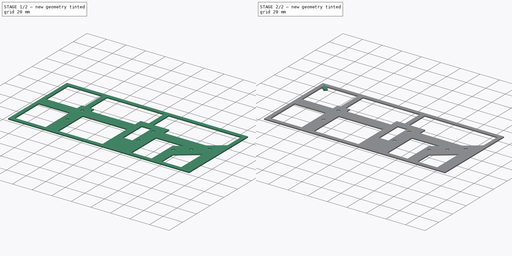
[diagram: build sequence overview — one tinted view per stage of 2, left to right]
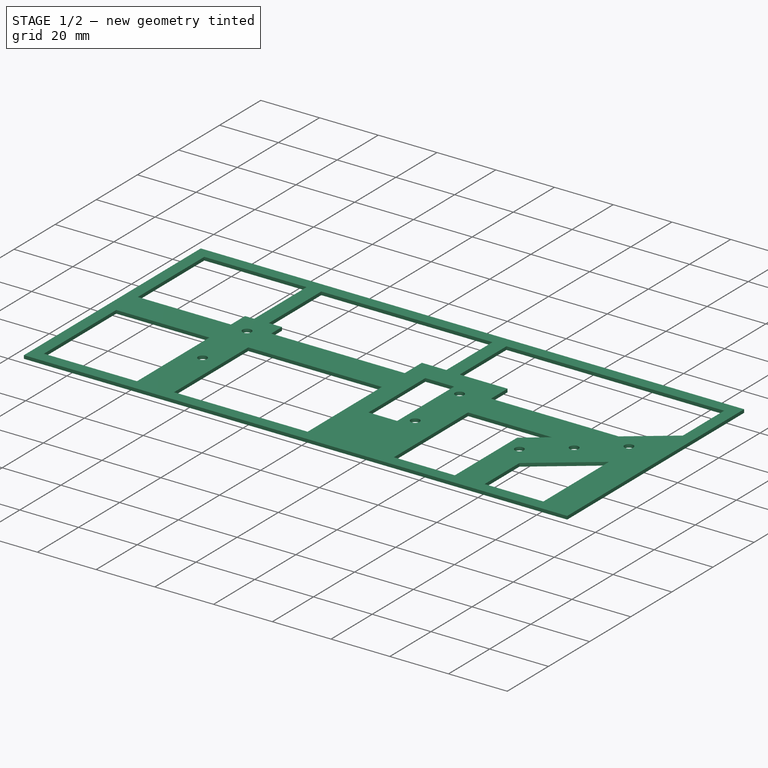
[diagram: stage 1 of 2 — iso view after this stage's code; geometry added in this stage tinted green]
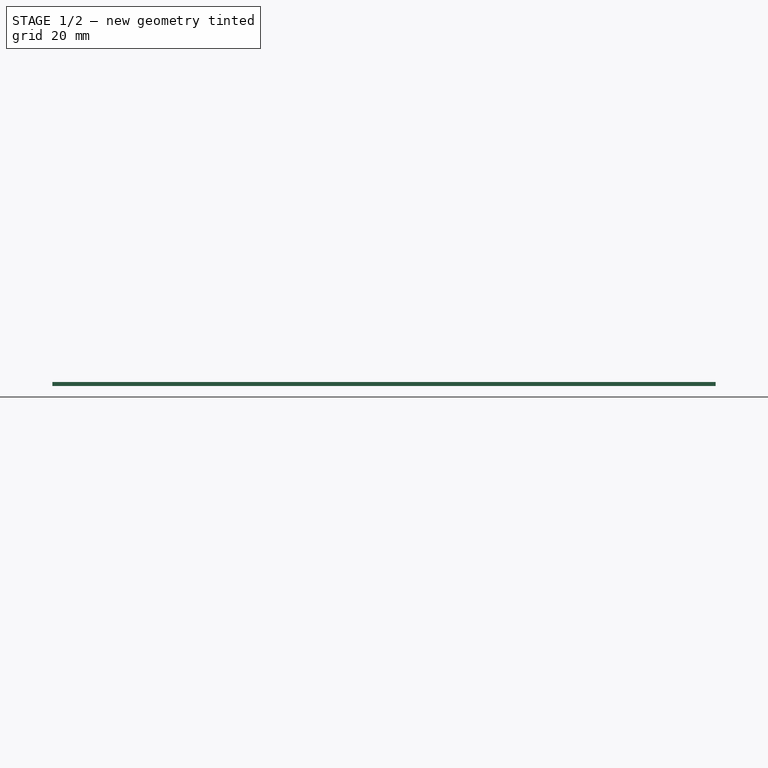
[diagram: stage 1 of 2 — front view after this stage's code; geometry added in this stage tinted green]
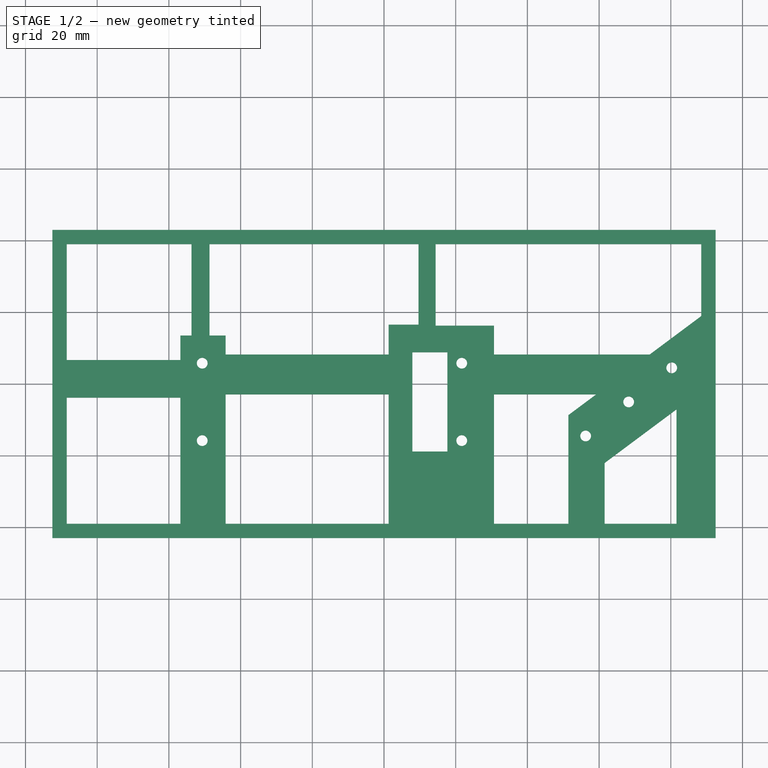
[diagram: stage 1 of 2 — top view after this stage's code; geometry added in this stage tinted green]
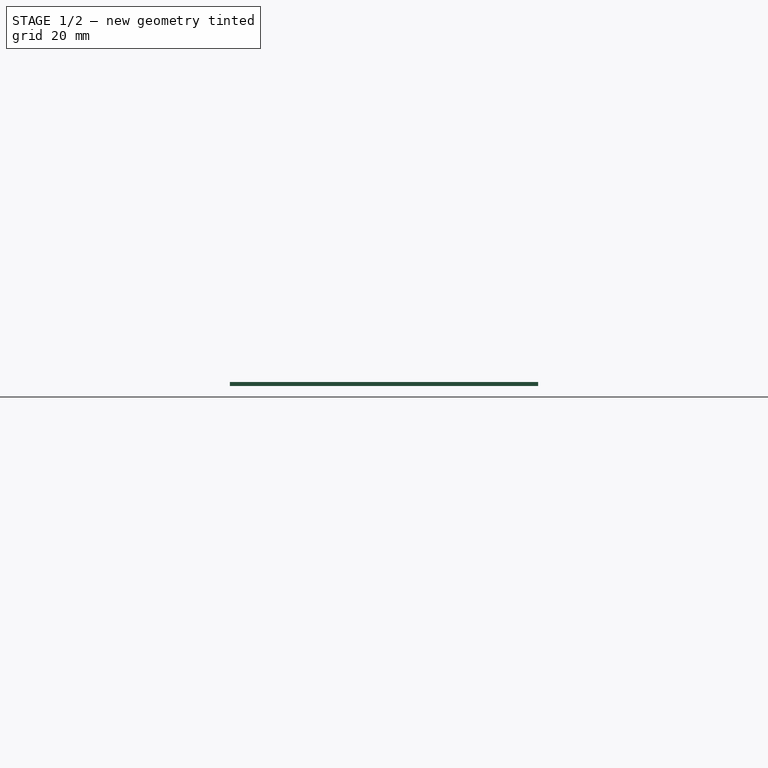
[diagram: stage 1 of 2 — right view after this stage's code; geometry added in this stage tinted green]
FCSTD DOCUMENT  (FreeCAD 0.20R29410 (Git))
Label: tools-case-top-panel
License: All rights reserved
LicenseURL: http://en.wikipedia.org/wiki/All_rights_reserved
objects: Sketcher::SketchObject×2, PartDesign::Pad×2, Part::FeaturePython×1, PartDesign::FeatureBase×1, PartDesign::Body×1
note: 9 computed .brp shape members not serialized (recipe doc carries the construction recipe); baked Part::Feature solids carry a one-line shape summary decoded from their .brp

FEATURE [Part::FeaturePython] b_case_top_panel_001_  label="REF_skBase"  # a2plus imported part (geometry in sourceFile) (typed FeaturePython)
  Placement = pos=(0,0,0) rot=(0.57735,0.57735,0.57735;2.0944rad)
  a2p_Version = V0.1
  fixedPosition = true
  objectType = a2pSketch
  sourceFile = .\case-top-panel.FCStd
  sourcePart = skBase
  subassemblyImport = false
  timeLastImport = 1.68112e+09
  updateColors = true
FEATURE [PartDesign::FeatureBase] BaseFeature  label="bfBase"
  BaseFeature = -> b_case_top_panel_001_
FEATURE [Sketcher::SketchObject] Sketch  label="skBase"
  ExternalGeometry = -> [BaseFeature]
  FullyConstrained = false
  MapMode = 5
  Support = -> [XY_Plane]
  sketch-geometry (64):
    g0: Circle CenterX=56.2497 CenterY=-14.5 CenterZ=0 NormalX=0 NormalY=0 NormalZ=1 AngleXU=0 Radius=1.5
    g1: Circle CenterX=68.2497 CenterY=-5 CenterZ=0 NormalX=0 NormalY=0 NormalZ=1 AngleXU=0 Radius=1.5
    g2: Circle CenterX=21.6847 CenterY=5.795 CenterZ=0 NormalX=0 NormalY=0 NormalZ=1 AngleXU=0 Radius=1.5
    g3: Circle CenterX=21.6847 CenterY=-15.795 CenterZ=0 NormalX=0 NormalY=0 NormalZ=1 AngleXU=0 Radius=1.5
    g4: Circle CenterX=-50.7053 CenterY=5.795 CenterZ=0 NormalX=0 NormalY=0 NormalZ=1 AngleXU=0 Radius=1.5
    g5: Circle CenterX=-50.7053 CenterY=-15.795 CenterZ=0 NormalX=0 NormalY=0 NormalZ=1 AngleXU=0 Radius=1.5
    g6: Circle CenterX=80.2497 CenterY=4.5 CenterZ=0 NormalX=0 NormalY=0 NormalZ=1 AngleXU=0 Radius=1.5
    g7: LineSegment StartX=-92.5 StartY=43 StartZ=0 EndX=92.5 EndY=43 EndZ=0
    g8: LineSegment StartX=92.5 StartY=43 StartZ=0 EndX=92.5 EndY=-43 EndZ=0
    g9: LineSegment StartX=92.5 StartY=-43 StartZ=0 EndX=-92.5 EndY=-43 EndZ=0
    g10: LineSegment StartX=-92.5 StartY=-43 StartZ=0 EndX=-92.5 EndY=43 EndZ=0
    g11: LineSegment StartX=7.9047 StartY=8.84 StartZ=0 EndX=17.6847 EndY=8.84 EndZ=0
    g12: LineSegment StartX=17.6847 StartY=8.84 StartZ=0 EndX=17.6847 EndY=-18.84 EndZ=0
    g13: LineSegment StartX=17.6847 StartY=-18.84 StartZ=0 EndX=7.9047 EndY=-18.84 EndZ=0
    g14: LineSegment StartX=7.9047 StartY=-18.84 StartZ=0 EndX=7.9047 EndY=8.84 EndZ=0
    g15: LineSegment StartX=88.5 StartY=39 StartZ=0 EndX=-88.5 EndY=39 EndZ=0
    g16: LineSegment StartX=-88.5 StartY=39 StartZ=0 EndX=-88.5 EndY=-39 EndZ=0
    g17: LineSegment StartX=-88.5 StartY=-39 StartZ=0 EndX=88.5 EndY=-39 EndZ=0
    g18: LineSegment StartX=88.5 StartY=-39 StartZ=0 EndX=88.5 EndY=39 EndZ=0
    g19: Circle CenterX=-88.5 CenterY=39 CenterZ=0 NormalX=0 NormalY=0 NormalZ=1 AngleXU=0 Radius=4
    g20: Circle CenterX=-88.5 CenterY=-39 CenterZ=0 NormalX=0 NormalY=0 NormalZ=1 AngleXU=0 Radius=4
    g21: Circle CenterX=88.5 CenterY=-39 CenterZ=0 NormalX=0 NormalY=0 NormalZ=1 AngleXU=0 Radius=4
    g22: Circle CenterX=88.5 CenterY=39 CenterZ=0 NormalX=0 NormalY=0 NormalZ=1 AngleXU=0 Radius=4
    g23: LineSegment StartX=61.5516 StartY=-39 StartZ=0 EndX=61.5516 EndY=-22.0325 EndZ=0
    g24: LineSegment StartX=61.5516 StartY=-22.0325 StartZ=0 EndX=81.5767 EndY=-7.09997 EndZ=0
    g25: LineSegment StartX=81.5767 StartY=-7.09997 StartZ=0 EndX=81.5767 EndY=-39 EndZ=0
    g26: LineSegment StartX=81.5767 StartY=-39 StartZ=0 EndX=61.5516 EndY=-39 EndZ=0
    g27: LineSegment StartX=51.4415 StartY=-8.67896 StartZ=0 EndX=51.4415 EndY=-39 EndZ=0
    g28: LineSegment StartX=51.4415 StartY=-39 StartZ=0 EndX=30.6762 EndY=-39 EndZ=0
    g29: LineSegment StartX=88.5 StartY=18.9553 StartZ=0 EndX=88.5 EndY=39 EndZ=0
    g30: LineSegment StartX=1.30061 StartY=-39 StartZ=0 EndX=-44.1832 EndY=-39 EndZ=0
    g31: LineSegment StartX=-56.7998 StartY=-39 StartZ=0 EndX=-88.5 EndY=-39 EndZ=0
    g32: LineSegment StartX=30.6762 StartY=16.2613 StartZ=0 EndX=14.3943 EndY=16.2613 EndZ=0
    g33: LineSegment StartX=14.3943 StartY=16.2613 StartZ=0 EndX=14.3943 EndY=39 EndZ=0
    g34: LineSegment StartX=1.30061 StartY=16.543 StartZ=0 EndX=9.64051 EndY=16.543 EndZ=0
    g35: LineSegment StartX=9.64051 StartY=16.543 StartZ=0 EndX=9.64051 EndY=39 EndZ=0
    g36: LineSegment StartX=9.64051 StartY=39 StartZ=0 EndX=-48.6629 EndY=39 EndZ=0
    g37: LineSegment StartX=-48.6629 StartY=39 StartZ=0 EndX=-48.6629 EndY=13.5048 EndZ=0
    g38: LineSegment StartX=-44.1832 StartY=13.5048 StartZ=0 EndX=-48.6629 EndY=13.5048 EndZ=0
    g39: LineSegment StartX=-56.7998 StartY=13.5048 StartZ=0 EndX=-53.6759 EndY=13.5048 EndZ=0
    g40: LineSegment StartX=-53.6759 StartY=13.5048 StartZ=0 EndX=-53.6759 EndY=39 EndZ=0
    g41: LineSegment StartX=-53.6759 StartY=39 StartZ=0 EndX=-88.5 EndY=39 EndZ=0
    g42: LineSegment StartX=14.3943 StartY=39 StartZ=0 EndX=88.5 EndY=39 EndZ=0
    g43: LineSegment StartX=88.5 StartY=18.9553 StartZ=0 EndX=74.1247 EndY=8.23579 EndZ=0
    g44: LineSegment StartX=74.1247 StartY=8.23579 StartZ=0 EndX=30.6762 EndY=8.23579 EndZ=0
    g45: LineSegment StartX=30.6762 StartY=8.23579 StartZ=0 EndX=30.6762 EndY=16.2613 EndZ=0
    g46: LineSegment StartX=51.4415 StartY=-8.67896 StartZ=0 EndX=59.1785 EndY=-2.90954 EndZ=0
    g47: LineSegment StartX=59.1785 StartY=-2.90954 StartZ=0 EndX=30.6762 EndY=-2.90954 EndZ=0
    g48: LineSegment StartX=30.6762 StartY=-2.90954 StartZ=0 EndX=30.6762 EndY=-39 EndZ=0
    g49: LineSegment StartX=59.1785 StartY=-2.90954 StartZ=0 EndX=74.1247 EndY=8.23579 EndZ=0
    g50: LineSegment StartX=1.30061 StartY=16.543 StartZ=0 EndX=1.30061 EndY=8.23579 EndZ=0
    g51: LineSegment StartX=1.30061 StartY=8.23579 StartZ=0 EndX=-44.1832 EndY=8.23579 EndZ=0
    g52: LineSegment StartX=-44.1832 StartY=8.23579 StartZ=0 EndX=-44.1832 EndY=13.5048 EndZ=0
    g53: LineSegment StartX=1.30061 StartY=-39 StartZ=0 EndX=1.30061 EndY=-2.90954 EndZ=0
    g54: LineSegment StartX=1.30061 StartY=-2.90954 StartZ=0 EndX=-44.1832 EndY=-2.90954 EndZ=0
    g55: LineSegment StartX=-44.1832 StartY=-2.90954 StartZ=0 EndX=-44.1832 EndY=-39 EndZ=0
    g56: LineSegment StartX=30.6762 StartY=8.23579 StartZ=0 EndX=1.30061 EndY=8.23579 EndZ=0
    g57: LineSegment StartX=30.6762 StartY=-2.90954 StartZ=0 EndX=1.30061 EndY=-2.90954 EndZ=0
    g58: LineSegment StartX=-88.5 StartY=39 StartZ=0 EndX=-88.5 EndY=6.68029 EndZ=0
    g59: LineSegment StartX=-88.5 StartY=6.68029 StartZ=0 EndX=-56.7998 EndY=6.68029 EndZ=0
    g60: LineSegment StartX=-56.7998 StartY=6.68029 StartZ=0 EndX=-56.7998 EndY=13.5048 EndZ=0
    g61: LineSegment StartX=-88.5 StartY=-39 StartZ=0 EndX=-88.5 EndY=-3.81903 EndZ=0
    g62: LineSegment StartX=-88.5 StartY=-3.81903 StartZ=0 EndX=-56.7998 EndY=-3.81903 EndZ=0
    g63: LineSegment StartX=-56.7998 StartY=-3.81903 StartZ=0 EndX=-56.7998 EndY=-39 EndZ=0
  constraints (146):
    c: Coincident(g0,g-11)
    c: Coincident(g1,g-13)
    c: Coincident(g2,g-9)
    c: Coincident(g3,g-10)
    c: Coincident(g4,g-5)
    c: Coincident(g5,g-6)
    c: Coincident(g6,g-12)
    c: Coincident(g7,g8)
    c: Coincident(g8,g9)
    c: Coincident(g9,g10)
    c: Coincident(g10,g7)
    c: Horizontal(g7)
    c: Horizontal(g9)
    c: Vertical(g8)
    c: Vertical(g10)
    c: Coincident(g7,g-4)
    c: Coincident(g8,g-3)
    c: Coincident(g11,g12)
    c: Coincident(g12,g13)
    c: Coincident(g13,g14)
    c: Coincident(g14,g11)
    c: Horizontal(g11)
    c: Horizontal(g13)
    c: Vertical(g12)
    c: Vertical(g14)
    c: Coincident(g11,g-8)
    c: Coincident(g12,g-7)
    c: Equal(g0,g1)
    c: Equal(g0,g6)
    c: Equal(g0, g2-g5) x4
    c: Diameter(g0) = 3
    c: Coincident(g15,g16)
    c: Coincident(g16,g17)
    c: Coincident(g17,g18)
    c: Coincident(g18,g15)
    c: Horizontal(g15)
    c: Horizontal(g17)
    c: Vertical(g16)
    c: Vertical(g18)
    c: Coincident(g19,g15)
    c: Coincident(g20,g16)
    c: Coincident(g21,g17)
    c: Coincident(g22,g15)
    c: Tangent(g22,g8)
    c: Tangent(g22,g7)
    c: Tangent(g19,g7)
    c: Tangent(g19,g10)
    c: Tangent(g20,g10)
    c: Tangent(g20,g9)
    c: Tangent(g21,g8)
    c: Radius(g21) = 4
    c: PointOnObject(g23,g17)
    c: Vertical(g23)
    c: Coincident(g23,g24)
    c: Coincident(g24,g25)
    c: PointOnObject(g25,g17)
    c: Vertical(g25)
    c: Coincident(g25,g26)
    c: Coincident(g26,g23)
    c: PointOnObject(g27,g17)
    c: Coincident(g27,g28)
    c: PointOnObject(g28,g17)
    c: Vertical(g27)
    c: PointOnObject(g29,g15)
    c: Vertical(g29)
    c: PointOnObject(g29,g18)
    c: PointOnObject(g30,g17)
    c: PointOnObject(g30,g17)
    c: PointOnObject(g31,g17)
    c: Coincident(g31,g16)
    c: Horizontal(g32)
    c: Coincident(g32,g33)
    c: Vertical(g33)
    c: Horizontal(g34)
    c: Coincident(g34,g35)
    c: Vertical(g35)
    c: Coincident(g35,g36)
    c: PointOnObject(g36,g15)
    c: Horizontal(g36)
    c: Coincident(g36,g37)
    c: Vertical(g37)
    c: Coincident(g38,g37)
    c: Horizontal(g38)
    c: Horizontal(g39)
    c: Coincident(g39,g40)
    c: Vertical(g40)
    c: Coincident(g40,g41)
    c: Horizontal(g41)
    c: Horizontal(g37,g39)
    c: Coincident(g42,g33)
    c: Coincident(g42,g29)
    c: Horizontal(g42)
    c: Coincident(g43,g44)
    c: Horizontal(g44)
    c: Coincident(g44,g45)
    c: Coincident(g45,g32)
    c: Vertical(g45)
    c: Parallel(g24,g43)
    c: Coincident(g27,g46)
    c: Coincident(g46,g47)
    c: Horizontal(g47)
    c: Coincident(g47,g48)
    c: Coincident(g48,g28)
    c: Vertical(g48)
    c: Parallel(g46,g24)
    c: Coincident(g49,g46)
    c: Coincident(g49,g43)
    c: Parallel(g49,g24)
    c: Vertical(g47,g44)
    c: Coincident(g34,g50)
    c: Vertical(g50)
    c: Coincident(g50,g51)
    c: Horizontal(g51)
    c: Coincident(g51,g52)
    c: Coincident(g52,g38)
    c: Vertical(g52)
    c: Coincident(g30,g53)
    c: Vertical(g53)
    c: Coincident(g53,g54)
    c: Horizontal(g54)
    c: Coincident(g54,g55)
    c: Coincident(g55,g30)
    c: Vertical(g55)
    c: Coincident(g56,g44)
    c: Coincident(g56,g50)
    c: Horizontal(g56)
    c: Coincident(g57,g47)
    c: Coincident(g57,g53)
    c: Horizontal(g57)
    c: Vertical(g54,g51)
    c: Coincident(g41,g58)
    c: PointOnObject(g58,g16)
    c: Vertical(g58)
    c: Coincident(g58,g59)
    c: Horizontal(g59)
    c: Coincident(g59,g60)
    c: Coincident(g60,g39)
    c: Vertical(g60)
    c: Coincident(g31,g61)
    c: PointOnObject(g61,g16)
    c: Coincident(g61,g62)
    c: Horizontal(g62)
    c: Coincident(g62,g63)
    c: Coincident(g63,g31)
    c: Vertical(g63)
    c: Coincident(g29,g43)
FEATURE [PartDesign::Pad] Pad  label="pdBase"
  BaseFeature = -> BaseFeature
  Direction = (0,0,1)
  Length = 1.12
  Length2 = 10
  Profile = -> Sketch
  ReferenceAxis = -> Sketch [N_Axis]
  Type = 0
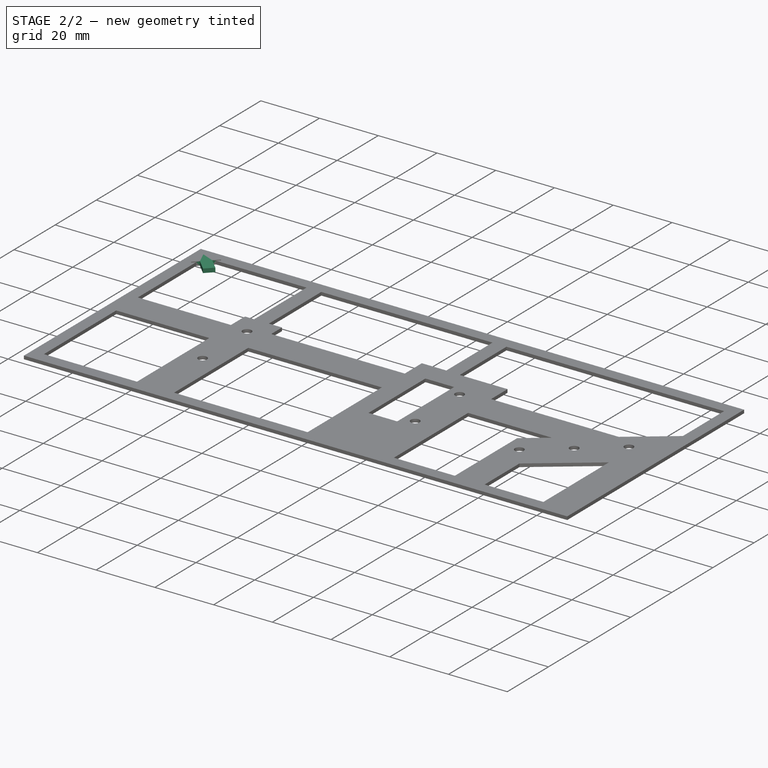
[diagram: stage 2 of 2 — iso view after this stage's code; geometry added in this stage tinted green]
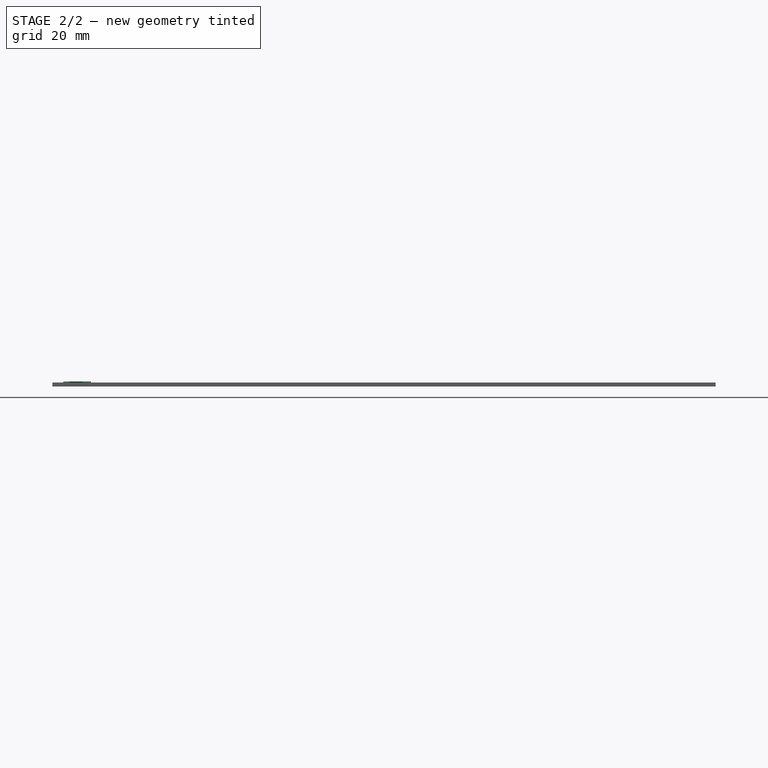
[diagram: stage 2 of 2 — front view after this stage's code; geometry added in this stage tinted green]
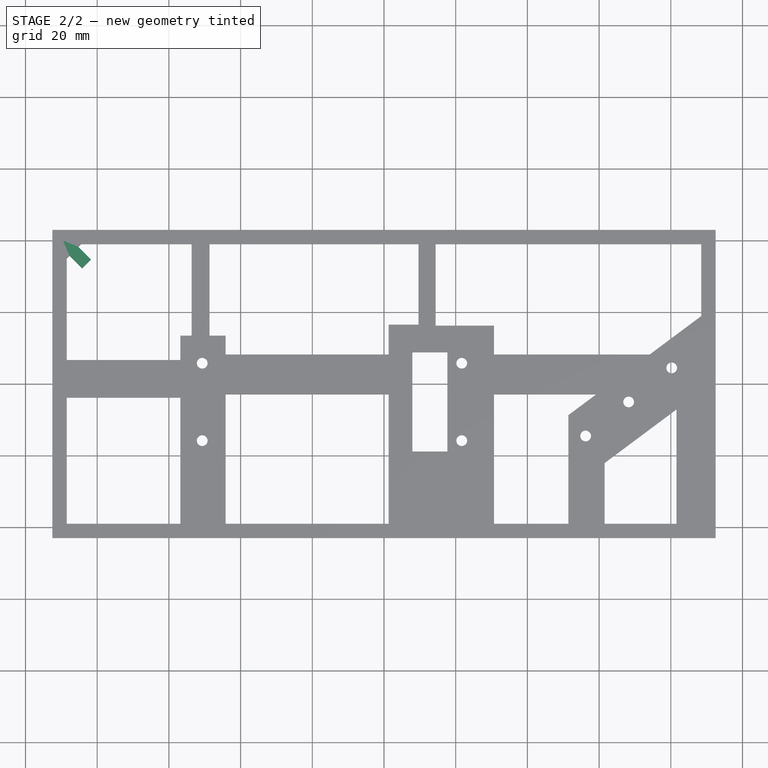
[diagram: stage 2 of 2 — top view after this stage's code; geometry added in this stage tinted green]
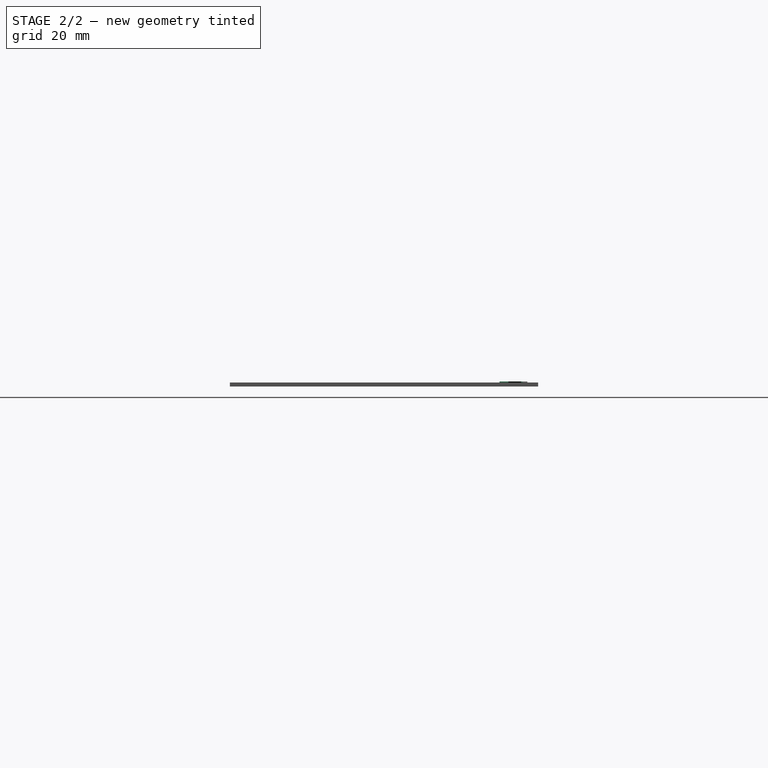
[diagram: stage 2 of 2 — right view after this stage's code; geometry added in this stage tinted green]
FEATURE [Sketcher::SketchObject] Sketch001  label="skArrow"
  ExternalGeometry = -> [BaseFeature]
  FullyConstrained = true
  MapMode = 5
  Support = -> [XY_Plane]
  sketch-geometry (9):
    g0: LineSegment StartX=-89.5 StartY=40 StartZ=0 EndX=-83.5 EndY=40 EndZ=0
    g1: LineSegment StartX=-83.5 StartY=40 StartZ=0 EndX=-85.2678 EndY=38.2322 EndZ=0
    g2: LineSegment StartX=-85.2678 StartY=38.2322 StartZ=0 EndX=-81.7322 EndY=34.6967 EndZ=0
    g3: LineSegment StartX=-81.7322 StartY=34.6967 StartZ=0 EndX=-84.1967 EndY=32.2322 EndZ=0
    g4: LineSegment StartX=-84.1967 StartY=32.2322 StartZ=0 EndX=-87.7322 EndY=35.7678 EndZ=0
    g5: LineSegment StartX=-87.7322 StartY=35.7678 StartZ=0 EndX=-89.5 EndY=34 EndZ=0
    g6: LineSegment StartX=-89.5 StartY=34 StartZ=0 EndX=-89.5 EndY=40 EndZ=0
    g7: LineSegment StartX=-89.5 StartY=34 StartZ=0 EndX=-83.5 EndY=40 EndZ=0
    g8: Circle CenterX=-89.5 CenterY=40 CenterZ=0 NormalX=0 NormalY=0 NormalZ=1 AngleXU=0 Radius=3
  constraints (25):
    c: Horizontal(g0)
    c: Coincident(g0,g1)
    c: Coincident(g1,g2)
    c: Coincident(g2,g3)
    c: Coincident(g3,g4)
    c: Coincident(g4,g5)
    c: Coincident(g5,g6)
    c: Vertical(g6)
    c: Coincident(g0,g6)
    c: Coincident(g7,g5)
    c: Coincident(g7,g0)
    c: PointOnObject(g1,g7)
    c: PointOnObject(g4,g7)
    c: Perpendicular(g3,g2)
    c: Perpendicular(g3,g4)
    c: Perpendicular(g4,g5)
    c: Equal(g1,g5)
    c: Angle(g0,g1) = 0.785398
    c: Distance(g0) = 6
    c: Distance(g1) = 2.5
    c: Distance(g2) = 5
    c: Coincident(g8,g0)
    c: Tangent(g8,g-3)
    c: Tangent(g8,g-4)
    c: Radius(g8) = 3
FEATURE [PartDesign::Pad] Pad001  label="pdArrow"
  BaseFeature = -> Pad
  Direction = (0,0,1)
  Length = 1.4
  Length2 = 10
  Profile = -> Sketch001
  ReferenceAxis = -> Sketch001 [N_Axis]
  Type = 0
FEATURE [PartDesign::Body] Body
  BaseFeature = -> b_case_top_panel_001_
  Group = -> [BaseFeature,Sketch,Pad,Sketch001,Pad001]
  Origin = -> Origin
  Tip = -> Pad001
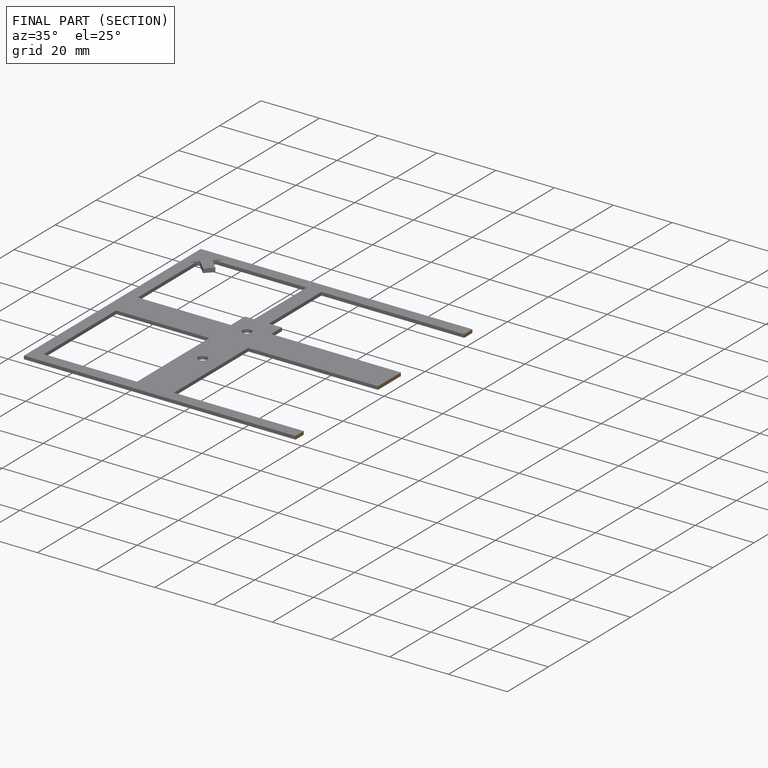
[diagram: finished part — half-section view (interior)]
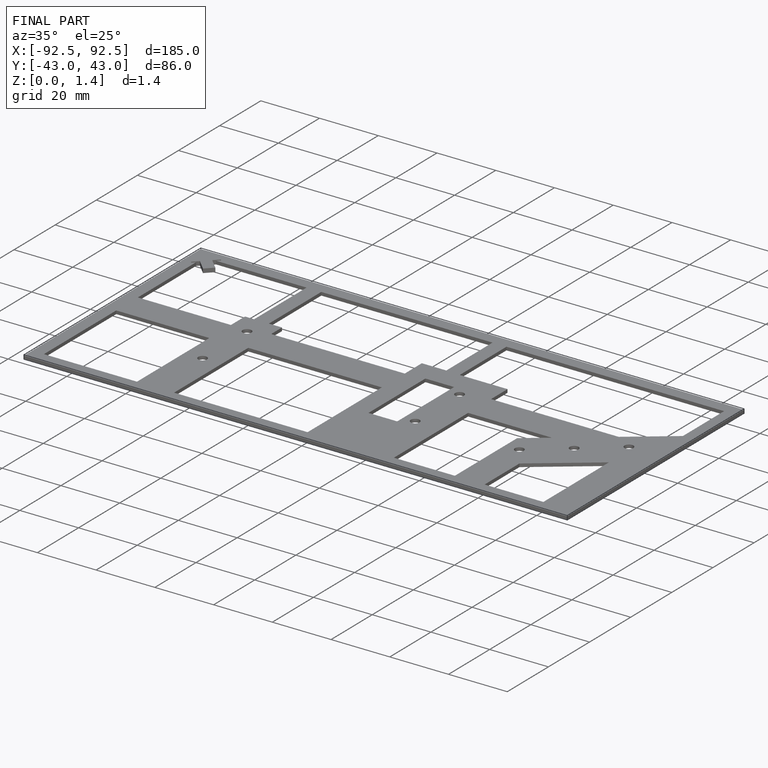
[diagram: finished part — iso view with bounding-box wireframe]
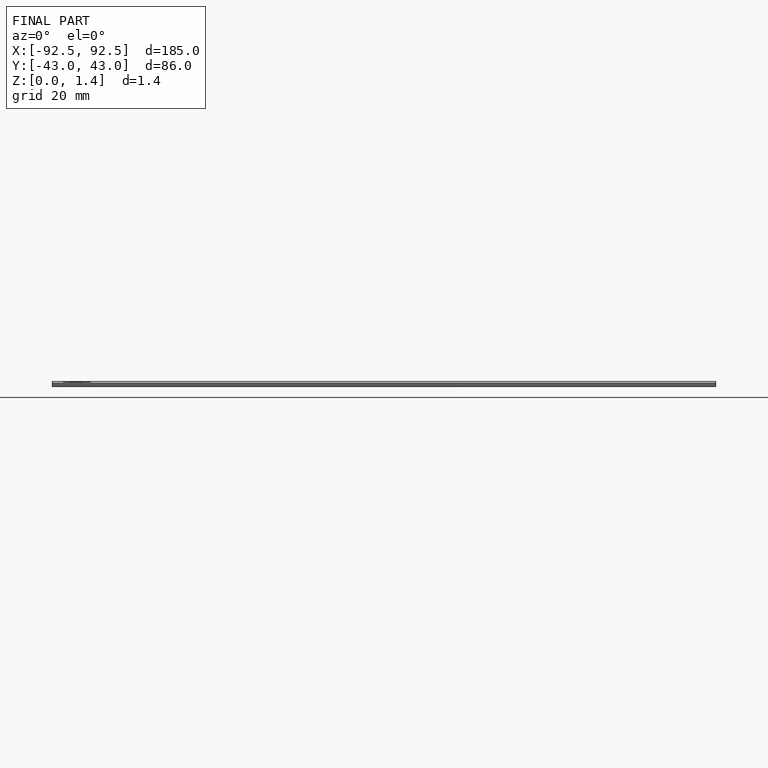
[diagram: finished part — front view with bounding-box wireframe]
